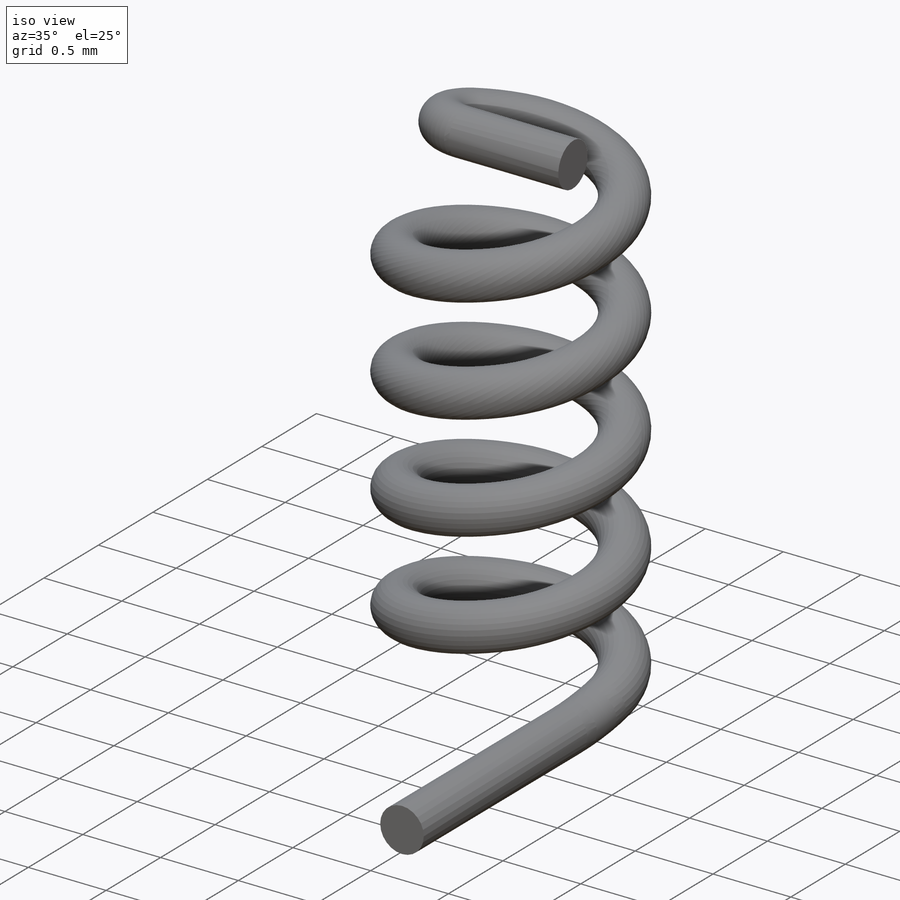
[diagram: iso view]
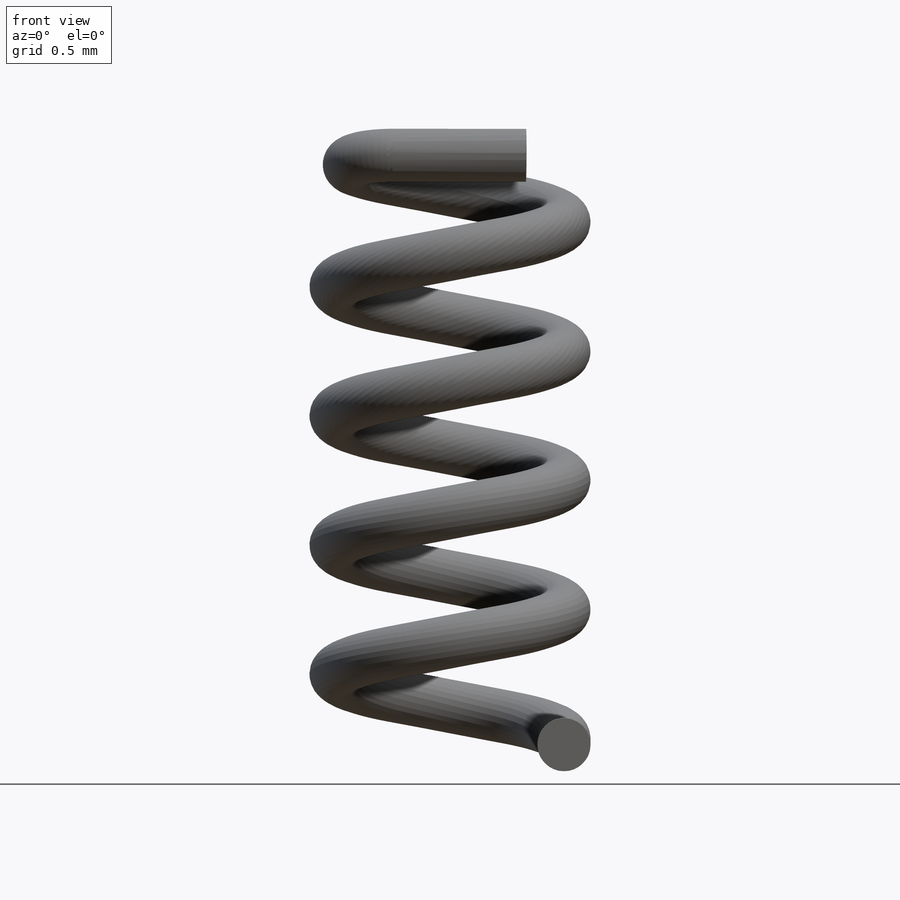
[diagram: front view]
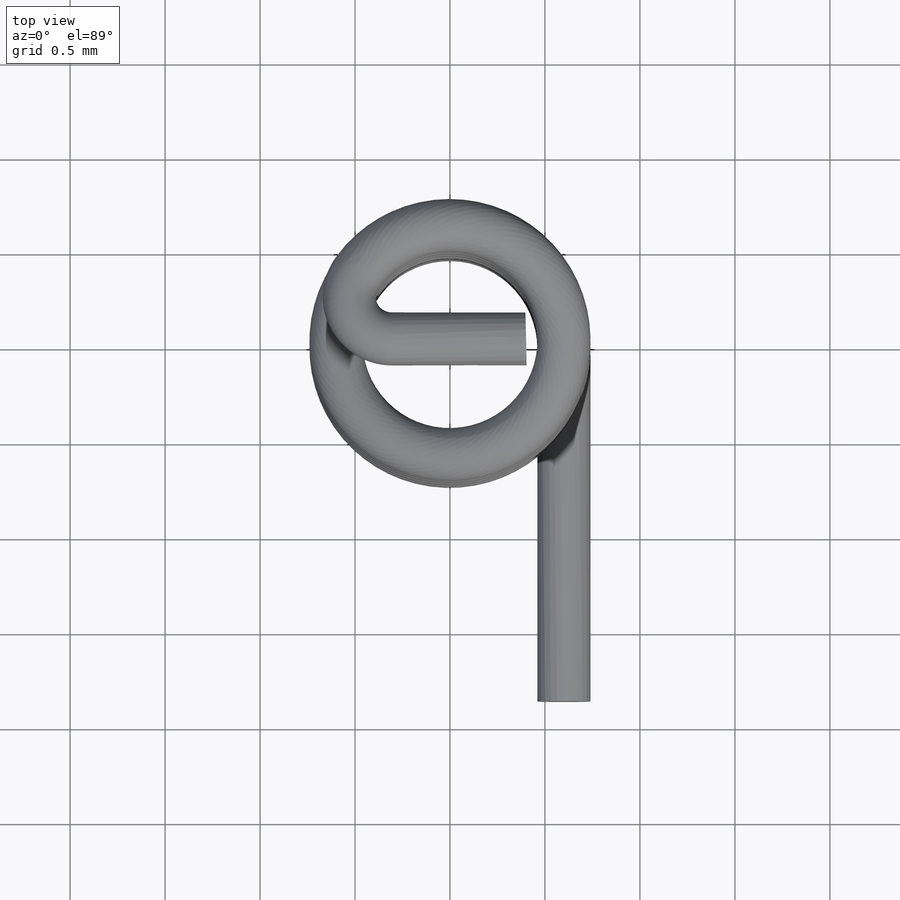
[diagram: top view]
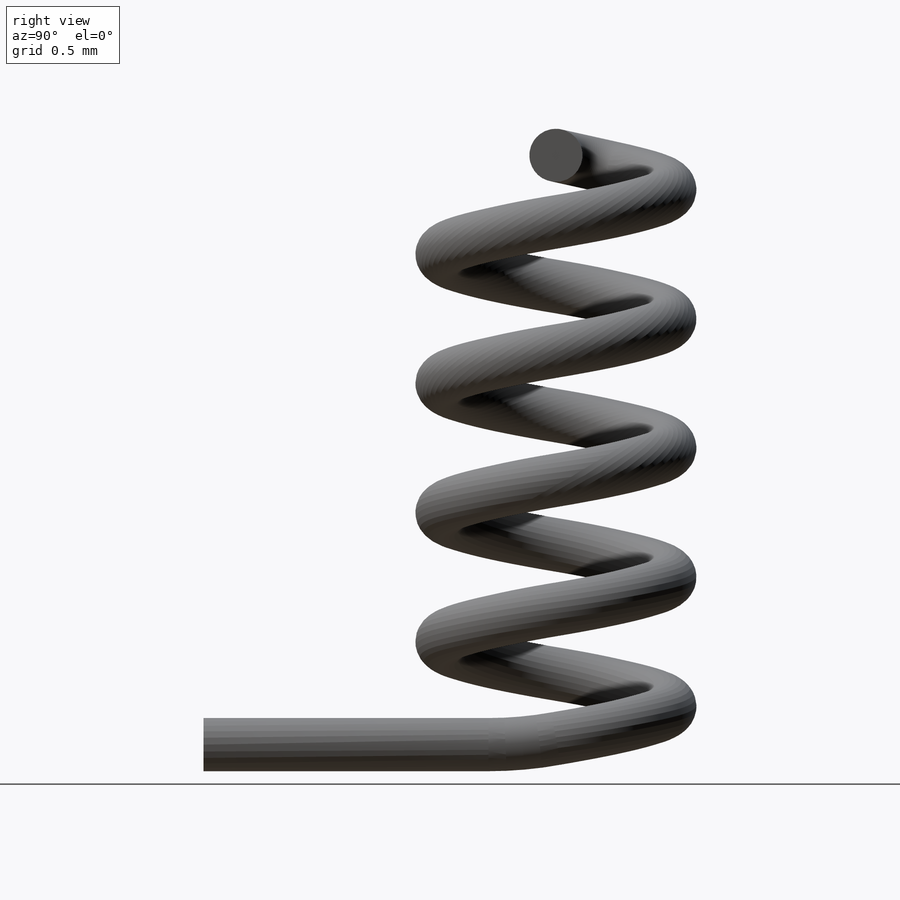
[diagram: right view]
SOLIDWORKS PART (.sldprt)
format: sldprt  version: not decoded by parser v0  size: 779,264 bytes
history: native  units: mm
features: sketch x10, plane x5, sweep x3, material x1, helix x1 (+13 scaffold rows collapsed)
feature tree (33):
  scaffold x13  (default folders/planes/origin — collapsed)
  material  "Material <not specified>"
  sketch  "Sketch1"  dims[D1=1.2mm]
  helix  "Helix/Spiral1"  Pitch=2.992mm
  plane  "Plane2"
  sketch  "Sketch3"  dims[D2=2.0mm D1=1.5mm]
  plane  "Plane3"
  sketch  "Sketch4"  dims[D1=0.28mm]
  plane  "Plane4"
  sketch  "Sketch5"  dims[D1=3.0mm]
  sketch  "Sketch6"
  plane  "Plane5"
  sketch  "Sketch7"  dims[D1=1.5mm]
  sketch  "Sketch8"
  plane  "Plane6"
  sketch  "Sketch9"  dims[D1=0.4mm]
  sweep  "Sweep1"
  sketch  "Sketch10"  dims[D1=0.0mm]
  sweep  "Sweep2"
  sketch  "Sketch11"  dims[D1=0.0mm]
  sweep  "Sweep3"
decode coverage: 9 of 14 modeling features carry decoded parameters
note: suppression state not decoded; provenance and decode notes live in map.json
